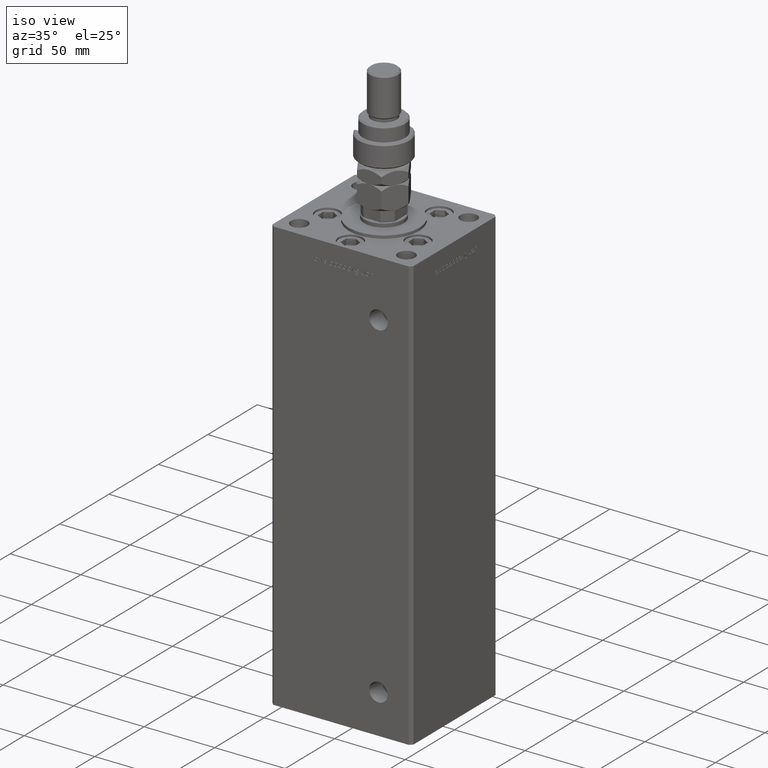
[diagram: clean part render]
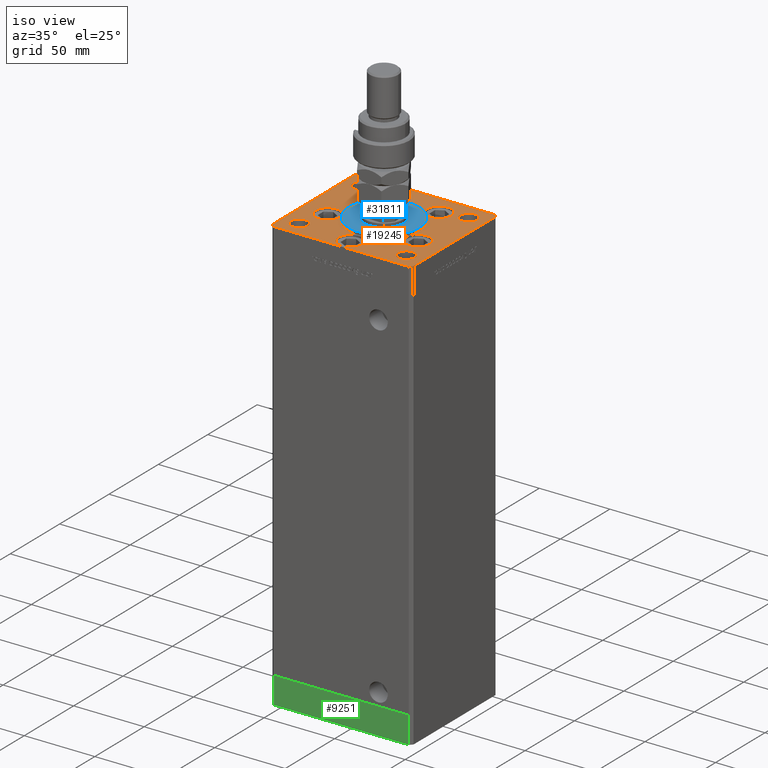
[diagram: same view with three faces highlighted in distinct colors, each labeled with its STEP entity id]
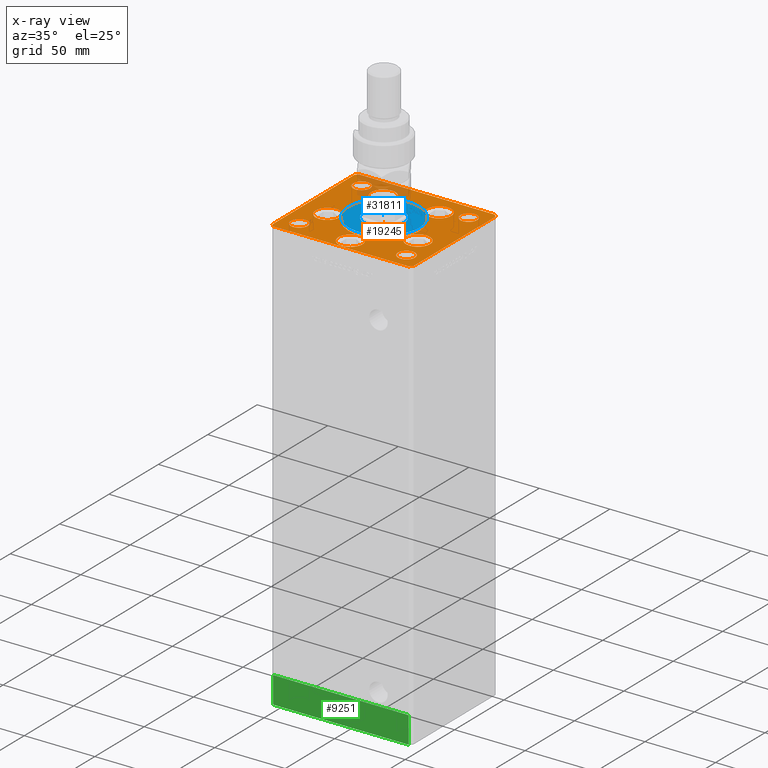
[diagram: x-ray of the same camera — body ghosted, the three highlighted faces saturated]
A machine part, iso view with three faces highlighted in distinct colors.
The next image is the same camera in x-ray (body ghosted, the three faces saturated) — at least one of them is partly hidden behind the body in this view.
Their STEP definitions:

[orange] entity #19245 — the highlighted planar face has unit normal (0, 0, 1).
#496 = CARTESIAN_POINT ( 'NONE',  ( -11.32068048781375147, 27.62499999999998934, 0.000000000000000000 ) ) ;
#573 = FACE_BOUND ( 'NONE', #17565, .T. ) ;
#1046 = ORIENTED_EDGE ( 'NONE', *, *, #46725, .F. ) ;
#1274 = DIRECTION ( 'NONE',  ( 0.000000000000000000, 0.000000000000000000, 1.000000000000000000 ) ) ;
#1312 = ORIENTED_EDGE ( 'NONE', *, *, #53943, .F. ) ;
#1545 = DIRECTION ( 'NONE',  ( 1.000000000000000000, 0.000000000000000000, 0.000000000000000000 ) ) ;
#1797 = VERTEX_POINT ( 'NONE', #8587 ) ;
#1838 = VECTOR ( 'NONE', #52569, 1000.000000000000000 ) ;
#1865 = EDGE_CURVE ( 'NONE', #7445, #17371, #6772, .T. ) ;
#1981 = AXIS2_PLACEMENT_3D ( 'NONE', #26478, #18138, #47591 ) ;
#2051 = VERTEX_POINT ( 'NONE', #32505 ) ;
#2207 = CARTESIAN_POINT ( 'NONE',  ( -50.00000000000000711, 41.49999999999999289, 0.000000000000000000 ) ) ;
#2333 = DIRECTION ( 'NONE',  ( 1.000000000000000000, 0.000000000000000000, 0.000000000000000000 ) ) ;
#2444 = EDGE_CURVE ( 'NONE', #3542, #15817, #24298, .T. ) ;
#2517 = EDGE_CURVE ( 'NONE', #18807, #18669, #5040, .T. ) ;
#2560 = DIRECTION ( 'NONE',  ( -0.7071067811865536790, -0.7071067811865414665, 0.000000000000000000 ) ) ;
#2934 = ORIENTED_EDGE ( 'NONE', *, *, #34174, .T. ) ;
#3012 = CARTESIAN_POINT ( 'NONE',  ( 8.500000000000000000, -34.00000000000000000, 0.000000000000000000 ) ) ;
#3542 = VERTEX_POINT ( 'NONE', #14248 ) ;
#3923 = CARTESIAN_POINT ( 'NONE',  ( 0.000000000000000000, -6.938893903907228378E-15, 0.000000000000000000 ) ) ;
#4161 = AXIS2_PLACEMENT_3D ( 'NONE', #19626, #53532, #2333 ) ;
#4189 = CARTESIAN_POINT ( 'NONE',  ( 47.99999999999999289, 43.50000000000000000, 0.000000000000000000 ) ) ;
#4323 = EDGE_LOOP ( 'NONE', ( #50794, #19924, #16253, #2934, #37180, #24200, #7571, #37706 ) ) ;
#4368 = CARTESIAN_POINT ( 'NONE',  ( 32.00000000000000000, 31.50000000000000000, 0.000000000000000000 ) ) ;
#4451 = FACE_BOUND ( 'NONE', #44213, .T. ) ;
#4531 = DIRECTION ( 'NONE',  ( 1.000000000000000000, 0.000000000000000000, 0.000000000000000000 ) ) ;
#4738 = FACE_BOUND ( 'NONE', #47363, .T. ) ;
#4859 = CARTESIAN_POINT ( 'NONE',  ( -48.00000000000000711, -43.50000000000002842, 0.000000000000000000 ) ) ;
#4873 = ORIENTED_EDGE ( 'NONE', *, *, #43273, .F. ) ;
#5040 = CIRCLE ( 'NONE', #27264, 8.500000000000000000 ) ;
#5097 = CARTESIAN_POINT ( 'NONE',  ( -40.55550741379015989, -11.33333333333332682, 0.000000000000000000 ) ) ;
#5166 = ORIENTED_EDGE ( 'NONE', *, *, #45491, .T. ) ;
#5300 = FACE_BOUND ( 'NONE', #11640, .T. ) ;
#5435 = DIRECTION ( 'NONE',  ( 1.000000000000000000, 0.000000000000000000, 0.000000000000000000 ) ) ;
#5693 = CIRCLE ( 'NONE', #9274, 5.999999999999998224 ) ;
#5817 = CARTESIAN_POINT ( 'NONE',  ( -32.05550741379015989, -11.33333333333332860, 0.000000000000000000 ) ) ;
#5849 = LINE ( 'NONE', #2207, #7338 ) ;
#5914 = VECTOR ( 'NONE', #2560, 1000.000000000000000 ) ;
#5986 = CARTESIAN_POINT ( 'NONE',  ( -38.00000000000000711, -31.50000000000000711, 0.000000000000000000 ) ) ;
#6772 = CIRCLE ( 'NONE', #50426, 25.00000000000000000 ) ;
#7338 = VECTOR ( 'NONE', #19227, 1000.000000000000000 ) ;
#7445 = VERTEX_POINT ( 'NONE', #14018 ) ;
#7571 = ORIENTED_EDGE ( 'NONE', *, *, #2444, .T. ) ;
#7863 = EDGE_CURVE ( 'NONE', #12328, #37828, #37193, .T. ) ;
#7921 = DIRECTION ( 'NONE',  ( -1.000000000000000000, 0.000000000000000000, 0.000000000000000000 ) ) ;
#8288 = EDGE_CURVE ( 'NONE', #53579, #17785, #18582, .T. ) ;
#8441 = CARTESIAN_POINT ( 'NONE',  ( 44.00000000000000000, 31.50000000000000000, 0.000000000000000000 ) ) ;
#8587 = CARTESIAN_POINT ( 'NONE',  ( 50.00000000000000000, -41.49999999999992895, 0.000000000000000000 ) ) ;
#8834 = CIRCLE ( 'NONE', #41720, 6.000000000000005329 ) ;
#9041 = LINE ( 'NONE', #4859, #14516 ) ;
#9274 = AXIS2_PLACEMENT_3D ( 'NONE', #22827, #48103, #52551 ) ;
#9359 = CARTESIAN_POINT ( 'NONE',  ( 38.00000000000000000, 31.50000000000000000, 0.000000000000000000 ) ) ;
#9476 = FACE_OUTER_BOUND ( 'NONE', #4323, .T. ) ;
#9491 = DIRECTION ( 'NONE',  ( -0.000000000000000000, -0.000000000000000000, -1.000000000000000000 ) ) ;
#9666 = VERTEX_POINT ( 'NONE', #3012 ) ;
#9904 = CARTESIAN_POINT ( 'NONE',  ( 40.55550741379015989, -11.33333333333332860, 0.000000000000000000 ) ) ;
#10221 = DIRECTION ( 'NONE',  ( 0.7071067811865474617, 0.7071067811865474617, 0.000000000000000000 ) ) ;
#10383 = ORIENTED_EDGE ( 'NONE', *, *, #24403, .T. ) ;
#10386 = DIRECTION ( 'NONE',  ( 1.000000000000000000, 0.000000000000000000, 0.000000000000000000 ) ) ;
#10578 = VERTEX_POINT ( 'NONE', #54147 ) ;
#10771 = DIRECTION ( 'NONE',  ( 1.000000000000000000, 0.000000000000000000, 0.000000000000000000 ) ) ;
#10833 = EDGE_CURVE ( 'NONE', #18669, #18807, #21414, .T. ) ;
#11316 = EDGE_CURVE ( 'NONE', #17371, #7445, #46320, .T. ) ;
#11508 = VERTEX_POINT ( 'NONE', #14135 ) ;
#11640 = EDGE_LOOP ( 'NONE', ( #31094, #26868 ) ) ;
#12328 = VERTEX_POINT ( 'NONE', #4368 ) ;
#12919 = CARTESIAN_POINT ( 'NONE',  ( 50.00000000000000000, 41.50000000000000711, 0.000000000000000000 ) ) ;
#13007 = CARTESIAN_POINT ( 'NONE',  ( -32.00000000000000000, 31.50000000000000000, 0.000000000000000000 ) ) ;
#13269 = DIRECTION ( 'NONE',  ( 0.000000000000000000, 0.000000000000000000, 1.000000000000000000 ) ) ;
#13386 = PLANE ( 'NONE',  #1981 ) ;
#13650 = VECTOR ( 'NONE', #10221, 1000.000000000000114 ) ;
#13751 = EDGE_CURVE ( 'NONE', #17785, #53579, #22466, .T. ) ;
#13869 = ORIENTED_EDGE ( 'NONE', *, *, #46827, .F. ) ;
#14018 = CARTESIAN_POINT ( 'NONE',  ( 25.00000000000000000, -3.877276906038844941E-15, 0.000000000000000000 ) ) ;
#14135 = CARTESIAN_POINT ( 'NONE',  ( -50.00000000000000000, -41.50000000000004263, 0.000000000000000000 ) ) ;
#14216 = FACE_BOUND ( 'NONE', #15760, .T. ) ;
#14248 = CARTESIAN_POINT ( 'NONE',  ( -48.00000000000000000, 43.49999999999997158, 0.000000000000000000 ) ) ;
#14374 = DIRECTION ( 'NONE',  ( 0.000000000000000000, 0.000000000000000000, 1.000000000000000000 ) ) ;
#14516 = VECTOR ( 'NONE', #33841, 1000.000000000000000 ) ;
#15132 = VERTEX_POINT ( 'NONE', #5097 ) ;
#15171 = ORIENTED_EDGE ( 'NONE', *, *, #10833, .F. ) ;
#15574 = DIRECTION ( 'NONE',  ( 1.000000000000000000, 0.000000000000000000, 0.000000000000000000 ) ) ;
#15665 = AXIS2_PLACEMENT_3D ( 'NONE', #30667, #9491, #49165 ) ;
#15749 = CIRCLE ( 'NONE', #4161, 8.500000000000000000 ) ;
#15760 = EDGE_LOOP ( 'NONE', ( #17103, #52445 ) ) ;
#15817 = VERTEX_POINT ( 'NONE', #47124 ) ;
#15889 = AXIS2_PLACEMENT_3D ( 'NONE', #50210, #46042, #7921 ) ;
#15923 = DIRECTION ( 'NONE',  ( 0.000000000000000000, 0.000000000000000000, 1.000000000000000000 ) ) ;
#15989 = ORIENTED_EDGE ( 'NONE', *, *, #32547, .F. ) ;
#16155 = EDGE_CURVE ( 'NONE', #9666, #10578, #46476, .T. ) ;
#16164 = VECTOR ( 'NONE', #22605, 1000.000000000000000 ) ;
#16253 = ORIENTED_EDGE ( 'NONE', *, *, #48826, .T. ) ;
#16332 = CARTESIAN_POINT ( 'NONE',  ( -28.32068048781375325, 27.62499999999998934, 0.000000000000000000 ) ) ;
#17103 = ORIENTED_EDGE ( 'NONE', *, *, #11316, .F. ) ;
#17104 = CIRCLE ( 'NONE', #47270, 6.000000000000005329 ) ;
#17147 = CIRCLE ( 'NONE', #18824, 8.500000000000000000 ) ;
#17371 = VERTEX_POINT ( 'NONE', #54554 ) ;
#17565 = EDGE_LOOP ( 'NONE', ( #15989, #18728 ) ) ;
#17785 = VERTEX_POINT ( 'NONE', #54946 ) ;
#18138 = DIRECTION ( 'NONE',  ( -0.000000000000000000, 0.000000000000000000, 1.000000000000000000 ) ) ;
#18361 = CARTESIAN_POINT ( 'NONE',  ( 23.55550741379015633, -11.33333333333332682, 0.000000000000000000 ) ) ;
#18582 = CIRCLE ( 'NONE', #49625, 8.500000000000000000 ) ;
#18669 = VERTEX_POINT ( 'NONE', #496 ) ;
#18672 = DIRECTION ( 'NONE',  ( 0.000000000000000000, 0.000000000000000000, 1.000000000000000000 ) ) ;
#18728 = ORIENTED_EDGE ( 'NONE', *, *, #45327, .F. ) ;
#18807 = VERTEX_POINT ( 'NONE', #16332 ) ;
#18824 = AXIS2_PLACEMENT_3D ( 'NONE', #49975, #20244, #10771 ) ;
#18942 = CARTESIAN_POINT ( 'NONE',  ( 38.00000000000000000, 31.50000000000000000, 0.000000000000000000 ) ) ;
#19227 = DIRECTION ( 'NONE',  ( 8.360113137237620037E-17, -1.000000000000000000, 0.000000000000000000 ) ) ;
#19245 = ADVANCED_FACE ( 'NONE', ( #14216, #31195, #5300, #42578, #4451, #43683, #51206, #4738, #573, #9476, #43127 ), #13386, .T. ) ;
#19307 = CARTESIAN_POINT ( 'NONE',  ( -44.00000000000001421, -31.50000000000000711, 0.000000000000000000 ) ) ;
#19626 = CARTESIAN_POINT ( 'NONE',  ( 32.05550741379015989, -11.33333333333332860, 0.000000000000000000 ) ) ;
#19814 = AXIS2_PLACEMENT_3D ( 'NONE', #32910, #15923, #20115 ) ;
#19924 = ORIENTED_EDGE ( 'NONE', *, *, #47809, .T. ) ;
#20115 = DIRECTION ( 'NONE',  ( 1.000000000000000000, 0.000000000000000000, 0.000000000000000000 ) ) ;
#20128 = CARTESIAN_POINT ( 'NONE',  ( -19.82068048781374969, 27.62499999999998934, 0.000000000000000000 ) ) ;
#20244 = DIRECTION ( 'NONE',  ( 0.000000000000000000, 0.000000000000000000, 1.000000000000000000 ) ) ;
#20292 = VERTEX_POINT ( 'NONE', #12919 ) ;
#21414 = CIRCLE ( 'NONE', #35627, 8.500000000000000000 ) ;
#21620 = ORIENTED_EDGE ( 'NONE', *, *, #28919, .T. ) ;
#21674 = CARTESIAN_POINT ( 'NONE',  ( 48.00000000000000711, -43.49999999999992184, 0.000000000000000000 ) ) ;
#22050 = LINE ( 'NONE', #43421, #16164 ) ;
#22256 = CARTESIAN_POINT ( 'NONE',  ( 0.000000000000000000, -6.938893903907228378E-15, 0.000000000000000000 ) ) ;
#22466 = CIRCLE ( 'NONE', #48151, 8.500000000000000000 ) ;
#22605 = DIRECTION ( 'NONE',  ( 0.7071067811865487940, -0.7071067811865463515, 0.000000000000000000 ) ) ;
#22606 = DIRECTION ( 'NONE',  ( 1.000000000000000000, 0.000000000000000000, 0.000000000000000000 ) ) ;
#22707 = VERTEX_POINT ( 'NONE', #18361 ) ;
#22827 = CARTESIAN_POINT ( 'NONE',  ( -38.00000000000000000, 31.50000000000000000, 0.000000000000000000 ) ) ;
#22931 = CARTESIAN_POINT ( 'NONE',  ( -23.55550741379015989, -11.33333333333332860, 0.000000000000000000 ) ) ;
#23010 = CARTESIAN_POINT ( 'NONE',  ( 32.05550741379015989, -11.33333333333332860, 0.000000000000000000 ) ) ;
#23123 = DIRECTION ( 'NONE',  ( -1.000000000000000000, 0.000000000000000000, 0.000000000000000000 ) ) ;
#23136 = VECTOR ( 'NONE', #45071, 1000.000000000000000 ) ;
#23353 = CIRCLE ( 'NONE', #46431, 8.500000000000000000 ) ;
#24022 = DIRECTION ( 'NONE',  ( 0.000000000000000000, 0.000000000000000000, 1.000000000000000000 ) ) ;
#24192 = CARTESIAN_POINT ( 'NONE',  ( 50.00000000000000000, 41.50000000000000711, 0.000000000000000000 ) ) ;
#24200 = ORIENTED_EDGE ( 'NONE', *, *, #36894, .T. ) ;
#24298 = LINE ( 'NONE', #31554, #5914 ) ;
#24403 = EDGE_CURVE ( 'NONE', #52155, #53361, #5693, .T. ) ;
#25092 = CIRCLE ( 'NONE', #33123, 6.000000000000005329 ) ;
#25998 = CARTESIAN_POINT ( 'NONE',  ( 19.82068048781374969, 27.62499999999998934, 0.000000000000000000 ) ) ;
#26360 = DIRECTION ( 'NONE',  ( 1.000000000000000000, 0.000000000000000000, 0.000000000000000000 ) ) ;
#26478 = CARTESIAN_POINT ( 'NONE',  ( 0.000000000000000000, 0.000000000000000000, 0.000000000000000000 ) ) ;
#26868 = ORIENTED_EDGE ( 'NONE', *, *, #13751, .F. ) ;
#26952 = EDGE_LOOP ( 'NONE', ( #1312, #4873 ) ) ;
#27264 = AXIS2_PLACEMENT_3D ( 'NONE', #20128, #24022, #10386 ) ;
#27438 = CARTESIAN_POINT ( 'NONE',  ( 44.00000000000001421, -31.50000000000000711, 0.000000000000000000 ) ) ;
#27979 = DIRECTION ( 'NONE',  ( 0.000000000000000000, 0.000000000000000000, 1.000000000000000000 ) ) ;
#28079 = DIRECTION ( 'NONE',  ( 1.000000000000000000, 0.000000000000000000, 0.000000000000000000 ) ) ;
#28133 = CARTESIAN_POINT ( 'NONE',  ( 50.00000000000000000, -41.49999999999992895, 0.000000000000000000 ) ) ;
#28919 = EDGE_CURVE ( 'NONE', #54813, #30224, #51189, .T. ) ;
#28992 = DIRECTION ( 'NONE',  ( 0.000000000000000000, 0.000000000000000000, 1.000000000000000000 ) ) ;
#29650 = CARTESIAN_POINT ( 'NONE',  ( 48.00000000000000711, -43.49999999999992184, 0.000000000000000000 ) ) ;
#30161 = CIRCLE ( 'NONE', #54109, 8.500000000000000000 ) ;
#30224 = VERTEX_POINT ( 'NONE', #48630 ) ;
#30545 = VECTOR ( 'NONE', #41122, 999.9999999999998863 ) ;
#30667 = CARTESIAN_POINT ( 'NONE',  ( 38.00000000000000711, -31.50000000000000711, 0.000000000000000000 ) ) ;
#30792 = ORIENTED_EDGE ( 'NONE', *, *, #16155, .F. ) ;
#30918 = CARTESIAN_POINT ( 'NONE',  ( 47.99999999999999289, 43.50000000000000000, 0.000000000000000000 ) ) ;
#31094 = ORIENTED_EDGE ( 'NONE', *, *, #8288, .F. ) ;
#31195 = FACE_BOUND ( 'NONE', #39910, .T. ) ;
#31194 = CARTESIAN_POINT ( 'NONE',  ( 38.00000000000000711, -31.50000000000000711, 0.000000000000000000 ) ) ;
#31328 = DIRECTION ( 'NONE',  ( 0.000000000000000000, 0.000000000000000000, 1.000000000000000000 ) ) ;
#31554 = CARTESIAN_POINT ( 'NONE',  ( -48.00000000000000000, 43.49999999999997158, 0.000000000000000000 ) ) ;
#31617 = EDGE_CURVE ( 'NONE', #22707, #39801, #15749, .T. ) ;
#31944 = CARTESIAN_POINT ( 'NONE',  ( 28.32068048781375325, 27.62499999999998934, 0.000000000000000000 ) ) ;
#31982 = VERTEX_POINT ( 'NONE', #4189 ) ;
#32505 = CARTESIAN_POINT ( 'NONE',  ( -48.00000000000000711, -43.50000000000002842, 0.000000000000000000 ) ) ;
#32547 = EDGE_CURVE ( 'NONE', #54375, #50295, #8834, .T. ) ;
#32910 = CARTESIAN_POINT ( 'NONE',  ( -32.05550741379015989, -11.33333333333332860, 0.000000000000000000 ) ) ;
#33123 = AXIS2_PLACEMENT_3D ( 'NONE', #50106, #28992, #49826 ) ;
#33841 = DIRECTION ( 'NONE',  ( 1.000000000000000000, 1.156482317317871331E-15, 0.000000000000000000 ) ) ;
#34174 = EDGE_CURVE ( 'NONE', #1797, #20292, #40085, .T. ) ;
#34921 = CIRCLE ( 'NONE', #45548, 5.999999999999998224 ) ;
#35125 = CARTESIAN_POINT ( 'NONE',  ( 0.000000000000000000, -34.00000000000000000, 0.000000000000000000 ) ) ;
#35627 = AXIS2_PLACEMENT_3D ( 'NONE', #39133, #1274, #47733 ) ;
#35816 = CIRCLE ( 'NONE', #19814, 8.500000000000000000 ) ;
#36441 = DIRECTION ( 'NONE',  ( 0.000000000000000000, 0.000000000000000000, 1.000000000000000000 ) ) ;
#36894 = EDGE_CURVE ( 'NONE', #31982, #3542, #48934, .T. ) ;
#37180 = ORIENTED_EDGE ( 'NONE', *, *, #48644, .T. ) ;
#37193 = CIRCLE ( 'NONE', #44267, 5.999999999999998224 ) ;
#37706 = ORIENTED_EDGE ( 'NONE', *, *, #46243, .T. ) ;
#37828 = VERTEX_POINT ( 'NONE', #8441 ) ;
#37899 = DIRECTION ( 'NONE',  ( 0.000000000000000000, 0.000000000000000000, 1.000000000000000000 ) ) ;
#39069 = EDGE_CURVE ( 'NONE', #11508, #2051, #22050, .T. ) ;
#39133 = CARTESIAN_POINT ( 'NONE',  ( -19.82068048781374969, 27.62499999999998934, 0.000000000000000000 ) ) ;
#39653 = CARTESIAN_POINT ( 'NONE',  ( 19.82068048781374969, 27.62499999999998934, 0.000000000000000000 ) ) ;
#39801 = VERTEX_POINT ( 'NONE', #9904 ) ;
#39880 = ORIENTED_EDGE ( 'NONE', *, *, #53631, .F. ) ;
#39910 = EDGE_LOOP ( 'NONE', ( #15171, #45546 ) ) ;
#40085 = LINE ( 'NONE', #28133, #23136 ) ;
#41122 = DIRECTION ( 'NONE',  ( -0.7071067811865512365, 0.7071067811865439090, 0.000000000000000000 ) ) ;
#41720 = AXIS2_PLACEMENT_3D ( 'NONE', #5986, #27979, #49631 ) ;
#41797 = EDGE_CURVE ( 'NONE', #53361, #52155, #48712, .T. ) ;
#41809 = ORIENTED_EDGE ( 'NONE', *, *, #31617, .F. ) ;
#42021 = AXIS2_PLACEMENT_3D ( 'NONE', #35125, #52593, #22606 ) ;
#42578 = FACE_BOUND ( 'NONE', #46603, .T. ) ;
#43070 = CARTESIAN_POINT ( 'NONE',  ( -32.00000000000000000, -31.50000000000000711, 0.000000000000000000 ) ) ;
#43127 = FACE_BOUND ( 'NONE', #46949, .T. ) ;
#43273 = EDGE_CURVE ( 'NONE', #15132, #53862, #30161, .T. ) ;
#43421 = CARTESIAN_POINT ( 'NONE',  ( -50.00000000000000000, -41.50000000000004263, 0.000000000000000000 ) ) ;
#43683 = FACE_BOUND ( 'NONE', #26952, .T. ) ;
#44213 = EDGE_LOOP ( 'NONE', ( #30792, #39880 ) ) ;
#44267 = AXIS2_PLACEMENT_3D ( 'NONE', #18942, #18672, #15574 ) ;
#44769 = CARTESIAN_POINT ( 'NONE',  ( -44.00000000000000000, 31.50000000000000000, 0.000000000000000000 ) ) ;
#45071 = DIRECTION ( 'NONE',  ( 0.000000000000000000, 1.000000000000000000, 0.000000000000000000 ) ) ;
#45327 = EDGE_CURVE ( 'NONE', #50295, #54375, #25092, .T. ) ;
#45491 = EDGE_CURVE ( 'NONE', #30224, #54813, #17104, .T. ) ;
#45546 = ORIENTED_EDGE ( 'NONE', *, *, #2517, .F. ) ;
#45548 = AXIS2_PLACEMENT_3D ( 'NONE', #9359, #13269, #26360 ) ;
#46042 = DIRECTION ( 'NONE',  ( -0.000000000000000000, -0.000000000000000000, -1.000000000000000000 ) ) ;
#46243 = EDGE_CURVE ( 'NONE', #15817, #11508, #5849, .T. ) ;
#46320 = CIRCLE ( 'NONE', #49845, 25.00000000000000000 ) ;
#46431 = AXIS2_PLACEMENT_3D ( 'NONE', #23010, #14374, #1545 ) ;
#46476 = CIRCLE ( 'NONE', #42021, 8.500000000000000000 ) ;
#46603 = EDGE_LOOP ( 'NONE', ( #13869, #41809 ) ) ;
#46725 = EDGE_CURVE ( 'NONE', #37828, #12328, #34921, .T. ) ;
#46827 = EDGE_CURVE ( 'NONE', #39801, #22707, #23353, .T. ) ;
#46841 = DIRECTION ( 'NONE',  ( 0.000000000000000000, 0.000000000000000000, 1.000000000000000000 ) ) ;
#46949 = EDGE_LOOP ( 'NONE', ( #21620, #5166 ) ) ;
#46964 = VERTEX_POINT ( 'NONE', #29650 ) ;
#47124 = CARTESIAN_POINT ( 'NONE',  ( -50.00000000000000711, 41.49999999999999289, 0.000000000000000000 ) ) ;
#47270 = AXIS2_PLACEMENT_3D ( 'NONE', #31194, #52851, #23123 ) ;
#47363 = EDGE_LOOP ( 'NONE', ( #1046, #54169 ) ) ;
#47591 = DIRECTION ( 'NONE',  ( 1.000000000000000000, 0.000000000000000000, 0.000000000000000000 ) ) ;
#47733 = DIRECTION ( 'NONE',  ( 1.000000000000000000, 0.000000000000000000, 0.000000000000000000 ) ) ;
#47809 = EDGE_CURVE ( 'NONE', #2051, #46964, #9041, .T. ) ;
#48103 = DIRECTION ( 'NONE',  ( -0.000000000000000000, -0.000000000000000000, -1.000000000000000000 ) ) ;
#48151 = AXIS2_PLACEMENT_3D ( 'NONE', #39653, #31328, #5435 ) ;
#48331 = LINE ( 'NONE', #21674, #13650 ) ;
#48621 = DIRECTION ( 'NONE',  ( 0.000000000000000000, 0.000000000000000000, 1.000000000000000000 ) ) ;
#48630 = CARTESIAN_POINT ( 'NONE',  ( 32.00000000000000000, -31.50000000000000711, 0.000000000000000000 ) ) ;
#48644 = EDGE_CURVE ( 'NONE', #20292, #31982, #49471, .T. ) ;
#48712 = CIRCLE ( 'NONE', #15889, 5.999999999999998224 ) ;
#48826 = EDGE_CURVE ( 'NONE', #46964, #1797, #48331, .T. ) ;
#48934 = LINE ( 'NONE', #30918, #1838 ) ;
#49165 = DIRECTION ( 'NONE',  ( -1.000000000000000000, 0.000000000000000000, 0.000000000000000000 ) ) ;
#49471 = LINE ( 'NONE', #24192, #30545 ) ;
#49625 = AXIS2_PLACEMENT_3D ( 'NONE', #25998, #46841, #4531 ) ;
#49631 = DIRECTION ( 'NONE',  ( 1.000000000000000000, 0.000000000000000000, 0.000000000000000000 ) ) ;
#49826 = DIRECTION ( 'NONE',  ( 1.000000000000000000, 0.000000000000000000, 0.000000000000000000 ) ) ;
#49845 = AXIS2_PLACEMENT_3D ( 'NONE', #3923, #37899, #54840 ) ;
#49975 = CARTESIAN_POINT ( 'NONE',  ( 0.000000000000000000, -34.00000000000000000, 0.000000000000000000 ) ) ;
#49997 = EDGE_LOOP ( 'NONE', ( #10383, #53977 ) ) ;
#50106 = CARTESIAN_POINT ( 'NONE',  ( -38.00000000000000711, -31.50000000000000711, 0.000000000000000000 ) ) ;
#50210 = CARTESIAN_POINT ( 'NONE',  ( -38.00000000000000000, 31.50000000000000000, 0.000000000000000000 ) ) ;
#50295 = VERTEX_POINT ( 'NONE', #19307 ) ;
#50426 = AXIS2_PLACEMENT_3D ( 'NONE', #22256, #48621, #51996 ) ;
#50794 = ORIENTED_EDGE ( 'NONE', *, *, #39069, .T. ) ;
#51189 = CIRCLE ( 'NONE', #15665, 6.000000000000005329 ) ;
#51206 = FACE_BOUND ( 'NONE', #49997, .T. ) ;
#51996 = DIRECTION ( 'NONE',  ( 1.000000000000000000, 0.000000000000000000, 0.000000000000000000 ) ) ;
#52155 = VERTEX_POINT ( 'NONE', #13007 ) ;
#52445 = ORIENTED_EDGE ( 'NONE', *, *, #1865, .F. ) ;
#52551 = DIRECTION ( 'NONE',  ( -1.000000000000000000, 0.000000000000000000, 0.000000000000000000 ) ) ;
#52569 = DIRECTION ( 'NONE',  ( -1.000000000000000000, -2.891205793294678326E-16, 0.000000000000000000 ) ) ;
#52593 = DIRECTION ( 'NONE',  ( 0.000000000000000000, 0.000000000000000000, 1.000000000000000000 ) ) ;
#52851 = DIRECTION ( 'NONE',  ( -0.000000000000000000, -0.000000000000000000, -1.000000000000000000 ) ) ;
#53361 = VERTEX_POINT ( 'NONE', #44769 ) ;
#53532 = DIRECTION ( 'NONE',  ( 0.000000000000000000, 0.000000000000000000, 1.000000000000000000 ) ) ;
#53579 = VERTEX_POINT ( 'NONE', #31944 ) ;
#53631 = EDGE_CURVE ( 'NONE', #10578, #9666, #17147, .T. ) ;
#53862 = VERTEX_POINT ( 'NONE', #22931 ) ;
#53943 = EDGE_CURVE ( 'NONE', #53862, #15132, #35816, .T. ) ;
#53977 = ORIENTED_EDGE ( 'NONE', *, *, #41797, .T. ) ;
#54109 = AXIS2_PLACEMENT_3D ( 'NONE', #5817, #36441, #28079 ) ;
#54147 = CARTESIAN_POINT ( 'NONE',  ( -8.500000000000000000, -34.00000000000000000, 0.000000000000000000 ) ) ;
#54169 = ORIENTED_EDGE ( 'NONE', *, *, #7863, .F. ) ;
#54375 = VERTEX_POINT ( 'NONE', #43070 ) ;
#54554 = CARTESIAN_POINT ( 'NONE',  ( -25.00000000000000000, -6.938893903907228378E-15, 0.000000000000000000 ) ) ;
#54813 = VERTEX_POINT ( 'NONE', #27438 ) ;
#54840 = DIRECTION ( 'NONE',  ( 1.000000000000000000, 0.000000000000000000, 0.000000000000000000 ) ) ;
#54946 = CARTESIAN_POINT ( 'NONE',  ( 11.32068048781375147, 27.62499999999998934, 0.000000000000000000 ) ) ;

[blue] entity #31811 — the highlighted planar face has unit normal (0, 0, 1).
#7038 = AXIS2_PLACEMENT_3D ( 'NONE', #32839, #45877, #50051 ) ;
#7412 = ORIENTED_EDGE ( 'NONE', *, *, #14369, .F. ) ;
#9406 = DIRECTION ( 'NONE',  ( 1.000000000000000000, 0.000000000000000000, 0.000000000000000000 ) ) ;
#9572 = VERTEX_POINT ( 'NONE', #19203 ) ;
#9824 = CARTESIAN_POINT ( 'NONE',  ( 0.000000000000000000, -6.938893903907228378E-15, 2.000000000000000000 ) ) ;
#11502 = CIRCLE ( 'NONE', #7038, 25.00000000000000000 ) ;
#11561 = EDGE_CURVE ( 'NONE', #9572, #45431, #50722, .T. ) ;
#12701 = ORIENTED_EDGE ( 'NONE', *, *, #32705, .F. ) ;
#14369 = EDGE_CURVE ( 'NONE', #54874, #23450, #34886, .T. ) ;
#15322 = AXIS2_PLACEMENT_3D ( 'NONE', #31942, #22245, #9406 ) ;
#16891 = EDGE_LOOP ( 'NONE', ( #7412, #12701 ) ) ;
#17925 = AXIS2_PLACEMENT_3D ( 'NONE', #30848, #21943, #39451 ) ;
#18474 = DIRECTION ( 'NONE',  ( 1.000000000000000000, 0.000000000000000000, -0.000000000000000000 ) ) ;
#19203 = CARTESIAN_POINT ( 'NONE',  ( 25.00000000000000000, -3.877276906038844941E-15, 2.000000000000000000 ) ) ;
#21943 = DIRECTION ( 'NONE',  ( 0.000000000000000000, 0.000000000000000000, 1.000000000000000000 ) ) ;
#22245 = DIRECTION ( 'NONE',  ( 0.000000000000000000, 0.000000000000000000, 1.000000000000000000 ) ) ;
#22660 = FACE_BOUND ( 'NONE', #16891, .T. ) ;
#23450 = VERTEX_POINT ( 'NONE', #49793 ) ;
#29054 = AXIS2_PLACEMENT_3D ( 'NONE', #9824, #47393, #18474 ) ;
#29623 = DIRECTION ( 'NONE',  ( 0.000000000000000000, 0.000000000000000000, 1.000000000000000000 ) ) ;
#30447 = PLANE ( 'NONE',  #29054 ) ;
#30848 = CARTESIAN_POINT ( 'NONE',  ( 0.000000000000000000, -6.938893903907228378E-15, 2.000000000000000000 ) ) ;
#30994 = FACE_OUTER_BOUND ( 'NONE', #37800, .T. ) ;
#31811 = ADVANCED_FACE ( 'NONE', ( #22660, #30994 ), #30447, .T. ) ;
#31942 = CARTESIAN_POINT ( 'NONE',  ( 0.000000000000000000, -6.938893903907228378E-15, 2.000000000000000000 ) ) ;
#31984 = AXIS2_PLACEMENT_3D ( 'NONE', #51571, #29623, #46572 ) ;
#32385 = EDGE_CURVE ( 'NONE', #45431, #9572, #11502, .T. ) ;
#32705 = EDGE_CURVE ( 'NONE', #23450, #54874, #47933, .T. ) ;
#32839 = CARTESIAN_POINT ( 'NONE',  ( 0.000000000000000000, -6.938893903907228378E-15, 2.000000000000000000 ) ) ;
#34886 = CIRCLE ( 'NONE', #15322, 14.00000000000000000 ) ;
#37800 = EDGE_LOOP ( 'NONE', ( #42404, #52783 ) ) ;
#39451 = DIRECTION ( 'NONE',  ( 1.000000000000000000, 0.000000000000000000, 0.000000000000000000 ) ) ;
#41016 = CARTESIAN_POINT ( 'NONE',  ( 14.00000000000000000, -6.938893903907228378E-15, 2.000000000000000000 ) ) ;
#42404 = ORIENTED_EDGE ( 'NONE', *, *, #32385, .T. ) ;
#43403 = CARTESIAN_POINT ( 'NONE',  ( -25.00000000000000000, -6.938893903907228378E-15, 2.000000000000000000 ) ) ;
#45431 = VERTEX_POINT ( 'NONE', #43403 ) ;
#45877 = DIRECTION ( 'NONE',  ( 0.000000000000000000, 0.000000000000000000, 1.000000000000000000 ) ) ;
#46572 = DIRECTION ( 'NONE',  ( 1.000000000000000000, 0.000000000000000000, 0.000000000000000000 ) ) ;
#47393 = DIRECTION ( 'NONE',  ( 0.000000000000000000, 0.000000000000000000, 1.000000000000000000 ) ) ;
#47933 = CIRCLE ( 'NONE', #31984, 14.00000000000000000 ) ;
#49793 = CARTESIAN_POINT ( 'NONE',  ( -14.00000000000000000, -5.224388385100933937E-15, 2.000000000000000000 ) ) ;
#50051 = DIRECTION ( 'NONE',  ( 1.000000000000000000, 0.000000000000000000, 0.000000000000000000 ) ) ;
#50722 = CIRCLE ( 'NONE', #17925, 25.00000000000000000 ) ;
#51571 = CARTESIAN_POINT ( 'NONE',  ( 0.000000000000000000, -6.938893903907228378E-15, 2.000000000000000000 ) ) ;
#52783 = ORIENTED_EDGE ( 'NONE', *, *, #11561, .T. ) ;
#54874 = VERTEX_POINT ( 'NONE', #41016 ) ;

[green] entity #9251 — the highlighted planar face has unit normal (0, -1, -0).
#596 = VECTOR ( 'NONE', #39886, 1000.000000000000000 ) ;
#2804 = LINE ( 'NONE', #15632, #27863 ) ;
#3254 = EDGE_CURVE ( 'NONE', #43577, #5647, #5937, .T. ) ;
#5647 = VERTEX_POINT ( 'NONE', #8751 ) ;
#5937 = LINE ( 'NONE', #43510, #596 ) ;
#6506 = ORIENTED_EDGE ( 'NONE', *, *, #36903, .T. ) ;
#8327 = ORIENTED_EDGE ( 'NONE', *, *, #3254, .T. ) ;
#8751 = CARTESIAN_POINT ( 'NONE',  ( 47.99999999999999289, -43.50000000000001421, 0.000000000000000000 ) ) ;
#9251 = ADVANCED_FACE ( 'NONE', ( #34124 ), #20781, .T. ) ;
#10895 = VECTOR ( 'NONE', #17092, 1000.000000000000000 ) ;
#14398 = CARTESIAN_POINT ( 'NONE',  ( 47.99999999999999289, -43.50000000000001421, -19.00000000000000000 ) ) ;
#15048 = EDGE_CURVE ( 'NONE', #41501, #52022, #54630, .T. ) ;
#15534 = ORIENTED_EDGE ( 'NONE', *, *, #15048, .F. ) ;
#15632 = CARTESIAN_POINT ( 'NONE',  ( -47.99999999999999289, -43.50000000000001421, 0.000000000000000000 ) ) ;
#17092 = DIRECTION ( 'NONE',  ( 0.000000000000000000, 0.000000000000000000, 1.000000000000000000 ) ) ;
#20781 = PLANE ( 'NONE',  #36370 ) ;
#24544 = DIRECTION ( 'NONE',  ( 1.000000000000000000, 0.000000000000000000, 0.000000000000000000 ) ) ;
#27646 = VECTOR ( 'NONE', #27819, 1000.000000000000000 ) ;
#27819 = DIRECTION ( 'NONE',  ( 1.000000000000000000, 0.000000000000000000, 0.000000000000000000 ) ) ;
#27863 = VECTOR ( 'NONE', #24544, 1000.000000000000000 ) ;
#28834 = ORIENTED_EDGE ( 'NONE', *, *, #49186, .F. ) ;
#31300 = CARTESIAN_POINT ( 'NONE',  ( -47.99999999999999289, -43.50000000000001421, -19.00000000000000000 ) ) ;
#33028 = DIRECTION ( 'NONE',  ( 0.000000000000000000, -0.000000000000000000, -1.000000000000000000 ) ) ;
#34124 = FACE_OUTER_BOUND ( 'NONE', #40975, .T. ) ;
#36370 = AXIS2_PLACEMENT_3D ( 'NONE', #46061, #46886, #33028 ) ;
#36903 = EDGE_CURVE ( 'NONE', #41501, #43577, #43946, .T. ) ;
#39753 = CARTESIAN_POINT ( 'NONE',  ( -47.99999999999999289, -43.50000000000001421, 0.000000000000000000 ) ) ;
#39886 = DIRECTION ( 'NONE',  ( 0.000000000000000000, 0.000000000000000000, 1.000000000000000000 ) ) ;
#40975 = EDGE_LOOP ( 'NONE', ( #28834, #15534, #6506, #8327 ) ) ;
#41501 = VERTEX_POINT ( 'NONE', #31300 ) ;
#42653 = CARTESIAN_POINT ( 'NONE',  ( -47.99999999999999289, -43.50000000000001421, -19.00000000000000000 ) ) ;
#43510 = CARTESIAN_POINT ( 'NONE',  ( 47.99999999999999289, -43.50000000000001421, -19.00000000000000000 ) ) ;
#43577 = VERTEX_POINT ( 'NONE', #14398 ) ;
#43946 = LINE ( 'NONE', #44484, #27646 ) ;
#44484 = CARTESIAN_POINT ( 'NONE',  ( -47.99999999999999289, -43.50000000000001421, -19.00000000000000000 ) ) ;
#46061 = CARTESIAN_POINT ( 'NONE',  ( -47.99999999999999289, -43.50000000000001421, -19.00000000000000000 ) ) ;
#46886 = DIRECTION ( 'NONE',  ( 0.000000000000000000, -1.000000000000000000, 0.000000000000000000 ) ) ;
#49186 = EDGE_CURVE ( 'NONE', #52022, #5647, #2804, .T. ) ;
#52022 = VERTEX_POINT ( 'NONE', #39753 ) ;
#54630 = LINE ( 'NONE', #42653, #10895 ) ;